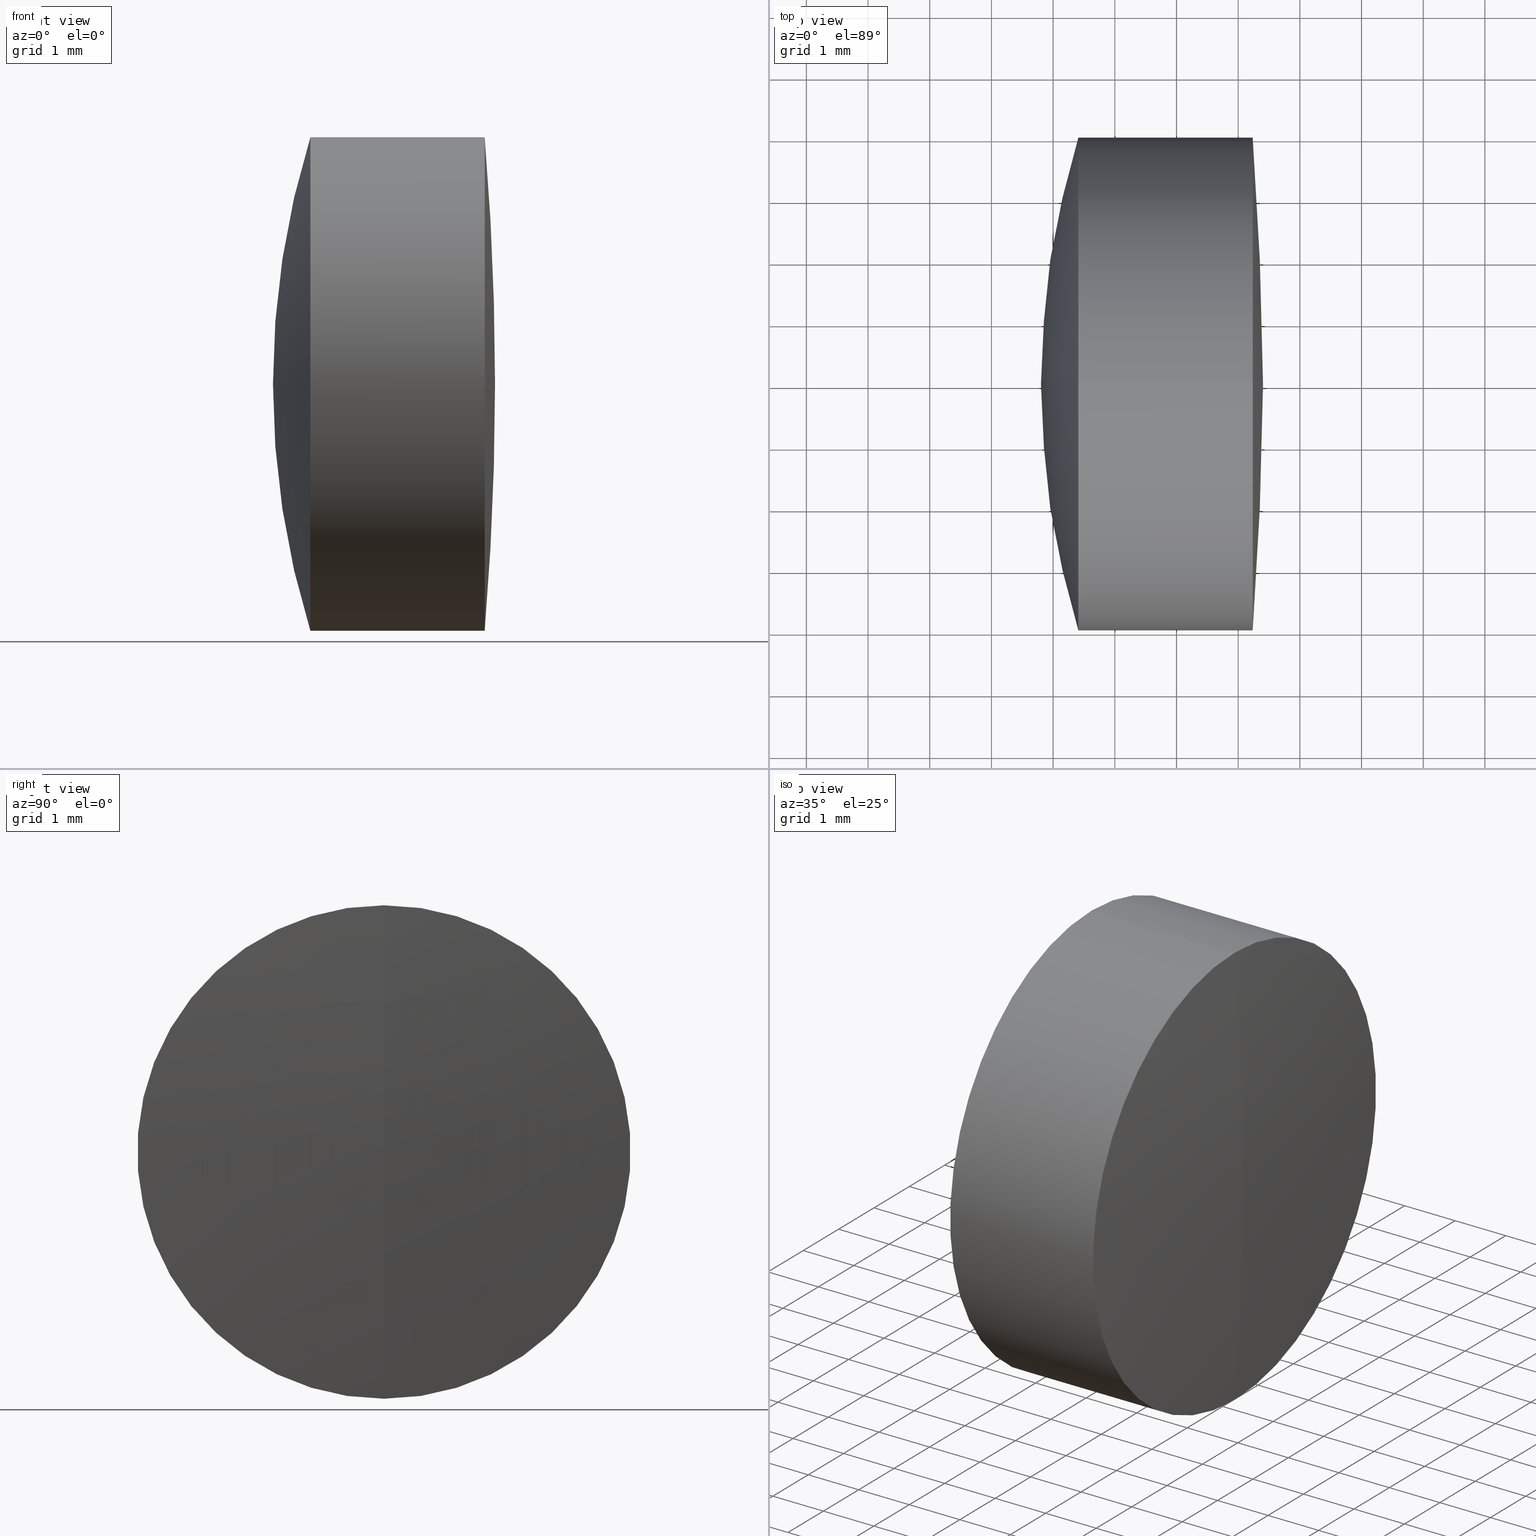
[diagram: canonical four-view strip — front | top / right | iso, engineering-drawing reading convention]
A machine part, canonical four-view strip (front | top / right | iso — engineering-drawing reading convention). The complete STEP part file that produces these views, byte-faithful:
ISO-10303-21;
HEADER;
FILE_DESCRIPTION (( 'STEP AP214' ),
    '1' );
FILE_NAME ('145108.STEP',
    '2019-05-29T07:32:19',
    ( 'user' ),
    ( '΢���й�' ),
    'SwSTEP 2.0',
    'SolidWorks 2016',
    '' );
FILE_SCHEMA (( 'AUTOMOTIVE_DESIGN' ));
ENDSEC;

DATA;
#1 = CIRCLE ( 'NONE', #264, 10.60000000000000500 ) ;
#2 = VERTEX_POINT ( 'NONE', #168 ) ;
#3 = ORIENTED_EDGE ( 'NONE', *, *, #326, .T. ) ;
#4 = COLOUR_RGB ( '',1.000000000000000000, 1.000000000000000000, 1.000000000000000000 ) ;
#5 = FACE_OUTER_BOUND ( 'NONE', #340, .T. ) ;
#6 = ADVANCED_FACE ( 'NONE', ( #277 ), #235, .T. ) ;
#7 = UNCERTAINTY_MEASURE_WITH_UNIT (LENGTH_MEASURE( 1.000000000000000100E-005 ), #117, 'distance_accuracy_value', 'NONE');
#8 = CARTESIAN_POINT ( 'NONE',  ( 221.6030744908272800, 0.0000000000000000000, 0.0000000000000000000 ) ) ;
#9 = AXIS2_PLACEMENT_3D ( 'NONE', #105, #107, #115 ) ;
#10 = ADVANCED_FACE ( 'NONE', ( #23 ), #290, .T. ) ;
#11 = CARTESIAN_POINT ( 'NONE',  ( 267.3193874442736700, 0.0000000000000000000, 3.999999999999998200 ) ) ;
#12 = SPHERICAL_SURFACE ( 'NONE', #116, 10.60000000000000500 ) ;
#13 = EDGE_LOOP ( 'NONE', ( #330, #77, #50 ) ) ;
#14 = ORIENTED_EDGE ( 'NONE', *, *, #19, .T. ) ;
#15 = DIRECTION ( 'NONE',  ( 0.0000000000000000000, -1.224646799147353200E-016, 1.000000000000000000 ) ) ;
#16 = AXIS2_PLACEMENT_3D ( 'NONE', #231, #130, #122 ) ;
#17 = EDGE_LOOP ( 'NONE', ( #296, #125, #220 ) ) ;
#18 = FILL_AREA_STYLE ('',( #245 ) ) ;
#19 = EDGE_CURVE ( 'NONE', #234, #321, #226, .T. ) ;
#20 = DIRECTION ( 'NONE',  ( -1.000000000000000000, -0.0000000000000000000, -0.0000000000000000000 ) ) ;
#21 = SURFACE_STYLE_USAGE ( .BOTH. , #236 ) ;
#22 = DIRECTION ( 'NONE',  ( -1.000000000000000000, -0.0000000000000000000, -0.0000000000000000000 ) ) ;
#23 = FACE_OUTER_BOUND ( 'NONE', #57, .T. ) ;
#24 = CARTESIAN_POINT ( 'NONE',  ( -0.5519199926577972300, 0.0000000000000000000, 3.999999999999998200 ) ) ;
#25 = DIRECTION ( 'NONE',  ( 0.0000000000000000000, 1.000000000000000000, 0.0000000000000000000 ) ) ;
#26 = DIRECTION ( 'NONE',  ( 0.0000000000000000000, 0.0000000000000000000, 1.000000000000000000 ) ) ;
#27 = ORIENTED_EDGE ( 'NONE', *, *, #326, .F. ) ;
#28 = CARTESIAN_POINT ( 'NONE',  ( 257.5030744908272600, 0.0000000000000000000, -2.901324745673849200E-016 ) ) ;
#29 = PRESENTATION_STYLE_ASSIGNMENT (( #206 ) ) ;
#30 = EDGE_LOOP ( 'NONE', ( #250, #161, #302 ) ) ;
#31 = VERTEX_POINT ( 'NONE', #191 ) ;
#32 = CARTESIAN_POINT ( 'NONE',  ( 257.5030744908272600, 0.0000000000000000000, -2.901324745673849200E-016 ) ) ;
#33 = AXIS2_PLACEMENT_3D ( 'NONE', #266, #311, #34 ) ;
#34 = DIRECTION ( 'NONE',  ( 0.0000000000000000000, 0.0000000000000000000, 1.000000000000000000 ) ) ;
#35 = EDGE_CURVE ( 'NONE', #83, #2, #90, .T. ) ;
#36 = CYLINDRICAL_SURFACE ( 'NONE', #33, 3.999999999999998200 ) ;
#37 = ADVANCED_FACE ( 'NONE', ( #75 ), #331, .T. ) ;
#38 = ORIENTED_EDGE ( 'NONE', *, *, #289, .T. ) ;
#39 = DIRECTION ( 'NONE',  ( 0.0000000000000000000, 0.0000000000000000000, -1.000000000000000000 ) ) ;
#40 = ORIENTED_EDGE ( 'NONE', *, *, #254, .T. ) ;
#41 = EDGE_LOOP ( 'NONE', ( #82, #227, #3, #223 ) ) ;
#42 = CARTESIAN_POINT ( 'NONE',  ( 266.4092775325995600, 0.0000000000000000000, 0.0000000000000000000 ) ) ;
#43 = ORIENTED_EDGE ( 'NONE', *, *, #202, .T. ) ;
#44 = VERTEX_POINT ( 'NONE', #93 ) ;
#45 = CIRCLE ( 'NONE', #46, 3.999999999999999100 ) ;
#46 = AXIS2_PLACEMENT_3D ( 'NONE', #71, #20, #327 ) ;
#47 = EDGE_CURVE ( 'NONE', #159, #198, #1, .T. ) ;
#48 = LINE ( 'NONE', #241, #218 ) ;
#49 = ORIENTED_EDGE ( 'NONE', *, *, #140, .T. ) ;
#50 = ORIENTED_EDGE ( 'NONE', *, *, #85, .F. ) ;
#51 = SPHERICAL_SURFACE ( 'NONE', #62, 10.60000000000000500 ) ;
#52 = MECHANICAL_DESIGN_GEOMETRIC_PRESENTATION_REPRESENTATION (  '', ( #347 ), #106 ) ;
#53 = ADVANCED_FACE ( 'NONE', ( #134 ), #12, .F. ) ;
#54 =( NAMED_UNIT ( * ) SI_UNIT ( $, .STERADIAN. ) SOLID_ANGLE_UNIT ( ) );
#55 = ORIENTED_EDGE ( 'NONE', *, *, #85, .T. ) ;
#56 = ORIENTED_EDGE ( 'NONE', *, *, #19, .F. ) ;
#57 = EDGE_LOOP ( 'NONE', ( #300, #96, #219 ) ) ;
#58 = CARTESIAN_POINT ( 'NONE',  ( 257.5030744908272600, 0.0000000000000000000, -2.901324745673849200E-016 ) ) ;
#59 = CIRCLE ( 'NONE', #252, 10.60000000000000500 ) ;
#60 = UNCERTAINTY_MEASURE_WITH_UNIT (LENGTH_MEASURE( 1.000000000000000100E-005 ), #100, 'distance_accuracy_value', 'NONE');
#61 = DIRECTION ( 'NONE',  ( 0.0000000000000000000, 0.0000000000000000000, 1.000000000000000000 ) ) ;
#62 = AXIS2_PLACEMENT_3D ( 'NONE', #177, #346, #317 ) ;
#63 = DIRECTION ( 'NONE',  ( 0.0000000000000000000, 0.0000000000000000000, 1.000000000000000000 ) ) ;
#64 = EDGE_CURVE ( 'NONE', #124, #83, #283, .T. ) ;
#65 = APPLICATION_PROTOCOL_DEFINITION ( 'draft international standard', 'automotive_design', 1998, #80 ) ;
#66 = ADVANCED_FACE ( 'NONE', ( #196 ), #69, .T. ) ;
#67 = DIRECTION ( 'NONE',  ( 0.0000000000000000000, 0.0000000000000000000, 1.000000000000000000 ) ) ;
#68 = CIRCLE ( 'NONE', #230, 3.999999999999998200 ) ;
#69 = CYLINDRICAL_SURFACE ( 'NONE', #344, 3.999999999999998200 ) ;
#70 = ORIENTED_EDGE ( 'NONE', *, *, #47, .F. ) ;
#71 = CARTESIAN_POINT ( 'NONE',  ( 267.3193874442736700, 0.0000000000000000000, 0.0000000000000000000 ) ) ;
#72 = CIRCLE ( 'NONE', #319, 47.79999999999996900 ) ;
#73 = DIRECTION ( 'NONE',  ( -1.000000000000000000, -0.0000000000000000000, -0.0000000000000000000 ) ) ;
#74 = CARTESIAN_POINT ( 'NONE',  ( 279.3030744908272700, 0.0000000000000000000, -1.429446538153924700E-015 ) ) ;
#75 = FACE_OUTER_BOUND ( 'NONE', #17, .T. ) ;
#76 = DIRECTION ( 'NONE',  ( 0.0000000000000000000, 1.000000000000000000, 0.0000000000000000000 ) ) ;
#77 = ORIENTED_EDGE ( 'NONE', *, *, #183, .T. ) ;
#78 = FILL_AREA_STYLE_COLOUR ( '', #213 ) ;
#79 = FACE_OUTER_BOUND ( 'NONE', #173, .T. ) ;
#80 = APPLICATION_CONTEXT ( 'automotive_design' ) ;
#81 = FILL_AREA_STYLE ('',( #78 ) ) ;
#82 = ORIENTED_EDGE ( 'NONE', *, *, #217, .F. ) ;
#83 = VERTEX_POINT ( 'NONE', #324 ) ;
#84 = AXIS2_PLACEMENT_3D ( 'NONE', #172, #186, #225 ) ;
#85 = EDGE_CURVE ( 'NONE', #158, #31, #157, .T. ) ;
#86 = DIRECTION ( 'NONE',  ( -0.0000000000000000000, 1.000000000000000000, 1.224646799147353200E-016 ) ) ;
#87 = ADVANCED_FACE ( 'NONE', ( #208 ), #36, .T. ) ;
#88 = CARTESIAN_POINT ( 'NONE',  ( 266.4092775325995600, 0.0000000000000000000, 3.999999999999999100 ) ) ;
#89 = DIRECTION ( 'NONE',  ( -1.000000000000000000, -0.0000000000000000000, -0.0000000000000000000 ) ) ;
#90 = CIRCLE ( 'NONE', #165, 13.50000000000004800 ) ;
#91 = SURFACE_SIDE_STYLE ('',( #149 ) ) ;
#92 = SURFACE_STYLE_USAGE ( .BOTH. , #91 ) ;
#93 = CARTESIAN_POINT ( 'NONE',  ( 267.3193874442736700, 4.898587196589412800E-016, -4.000000000000000000 ) ) ;
#94 =( NAMED_UNIT ( * ) PLANE_ANGLE_UNIT ( ) SI_UNIT ( $, .RADIAN. ) );
#95 = DIRECTION ( 'NONE',  ( -0.0000000000000000000, 1.000000000000000000, 1.224646799147353200E-016 ) ) ;
#96 = ORIENTED_EDGE ( 'NONE', *, *, #35, .T. ) ;
#97 = CARTESIAN_POINT ( 'NONE',  ( 267.3193874442736700, 0.0000000000000000000, 0.0000000000000000000 ) ) ;
#98 = CARTESIAN_POINT ( 'NONE',  ( -0.5519199926577972300, 0.0000000000000000000, 0.0000000000000000000 ) ) ;
#99 = AXIS2_PLACEMENT_3D ( 'NONE', #113, #112, #201 ) ;
#100 =( LENGTH_UNIT ( ) NAMED_UNIT ( * ) SI_UNIT ( .MILLI., .METRE. ) );
#101 = PRESENTATION_LAYER_ASSIGNMENT (  '', '', ( #347 ) ) ;
#102 =( NAMED_UNIT ( * ) PLANE_ANGLE_UNIT ( ) SI_UNIT ( $, .RADIAN. ) );
#103 = SPHERICAL_SURFACE ( 'NONE', #274, 10.60000000000000500 ) ;
#104 =( NAMED_UNIT ( * ) SI_UNIT ( $, .STERADIAN. ) SOLID_ANGLE_UNIT ( ) );
#105 = CARTESIAN_POINT ( 'NONE',  ( 0.0000000000000000000, 0.0000000000000000000, 0.0000000000000000000 ) ) ;
#106 =( GEOMETRIC_REPRESENTATION_CONTEXT ( 3 ) GLOBAL_UNCERTAINTY_ASSIGNED_CONTEXT ( ( #60 ) ) GLOBAL_UNIT_ASSIGNED_CONTEXT ( ( #100, #102, #104 ) ) REPRESENTATION_CONTEXT ( 'NONE', 'WORKASPACE' ) );
#107 = DIRECTION ( 'NONE',  ( 0.0000000000000000000, 0.0000000000000000000, 1.000000000000000000 ) ) ;
#108 = VECTOR ( 'NONE', #119, 1000.000000000000000 ) ;
#109 = CARTESIAN_POINT ( 'NONE',  ( 257.5030744908272600, 0.0000000000000000000, -2.901324745673849200E-016 ) ) ;
#110 = DIRECTION ( 'NONE',  ( 0.0000000000000000000, 0.0000000000000000000, -1.000000000000000000 ) ) ;
#111 = DIRECTION ( 'NONE',  ( 0.0000000000000000000, 1.000000000000000000, 0.0000000000000000000 ) ) ;
#112 = DIRECTION ( 'NONE',  ( 0.0000000000000000000, 1.000000000000000000, 0.0000000000000000000 ) ) ;
#113 = CARTESIAN_POINT ( 'NONE',  ( 279.3030744908272700, 0.0000000000000000000, -1.429446538153924700E-015 ) ) ;
#114 = CIRCLE ( 'NONE', #16, 3.999999999999999100 ) ;
#115 = DIRECTION ( 'NONE',  ( 1.000000000000000000, 0.0000000000000000000, 0.0000000000000000000 ) ) ;
#116 = AXIS2_PLACEMENT_3D ( 'NONE', #166, #152, #257 ) ;
#117 =( LENGTH_UNIT ( ) NAMED_UNIT ( * ) SI_UNIT ( .MILLI., .METRE. ) );
#118 = EDGE_CURVE ( 'NONE', #158, #198, #269, .T. ) ;
#119 = DIRECTION ( 'NONE',  ( -1.000000000000000000, -0.0000000000000000000, -0.0000000000000000000 ) ) ;
#120 = SPHERICAL_SURFACE ( 'NONE', #200, 47.79999999999996900 ) ;
#121 = CARTESIAN_POINT ( 'NONE',  ( 269.2354164445880500, 0.0000000000000000000, 0.0000000000000000000 ) ) ;
#122 = DIRECTION ( 'NONE',  ( 0.0000000000000000000, 0.0000000000000000000, 1.000000000000000000 ) ) ;
#123 = VECTOR ( 'NONE', #139, 1000.000000000000000 ) ;
#124 = VERTEX_POINT ( 'NONE', #88 ) ;
#125 = ORIENTED_EDGE ( 'NONE', *, *, #150, .T. ) ;
#126 = AXIS2_PLACEMENT_3D ( 'NONE', #97, #261, #233 ) ;
#127 = CIRCLE ( 'NONE', #282, 10.60000000000000500 ) ;
#128 = ADVANCED_BREP_SHAPE_REPRESENTATION ( '145108', ( #160, #336, #9 ), #329 ) ;
#129 = CIRCLE ( 'NONE', #288, 47.79999999999996900 ) ;
#130 = DIRECTION ( 'NONE',  ( -1.000000000000000000, -0.0000000000000000000, -0.0000000000000000000 ) ) ;
#131 = SPHERICAL_SURFACE ( 'NONE', #179, 47.79999999999996900 ) ;
#132 = STYLED_ITEM ( 'NONE', ( #337 ), #336 ) ;
#133 = CARTESIAN_POINT ( 'NONE',  ( 266.4092775325995600, 0.0000000000000000000, 0.0000000000000000000 ) ) ;
#134 = FACE_OUTER_BOUND ( 'NONE', #30, .T. ) ;
#135 = VERTEX_POINT ( 'NONE', #182 ) ;
#136 = PRODUCT_CONTEXT ( 'NONE', #80, 'mechanical' ) ;
#137 = FILL_AREA_STYLE_COLOUR ( '', #4 ) ;
#138 = DIRECTION ( 'NONE',  ( 0.0000000000000000000, 1.000000000000000000, 0.0000000000000000000 ) ) ;
#139 = DIRECTION ( 'NONE',  ( -1.000000000000000000, -0.0000000000000000000, -0.0000000000000000000 ) ) ;
#140 = EDGE_CURVE ( 'NONE', #135, #158, #129, .T. ) ;
#141 = ADVANCED_FACE ( 'NONE', ( #5 ), #188, .T. ) ;
#142 =( NAMED_UNIT ( * ) SI_UNIT ( $, .STERADIAN. ) SOLID_ANGLE_UNIT ( ) );
#143 = CLOSED_SHELL ( 'NONE', ( #268, #87, #171, #53, #6, #299 ) ) ;
#144 = DIRECTION ( 'NONE',  ( 0.0000000000000000000, -1.000000000000000000, 0.0000000000000000000 ) ) ;
#145 = ORIENTED_EDGE ( 'NONE', *, *, #202, .F. ) ;
#146 = PRODUCT ( '145108', '145108', '', ( #136 ) ) ;
#147 = AXIS2_PLACEMENT_3D ( 'NONE', #74, #320, #39 ) ;
#148 = CARTESIAN_POINT ( 'NONE',  ( 279.3030744908272700, 0.0000000000000000000, -1.429446538153924700E-015 ) ) ;
#149 = SURFACE_STYLE_FILL_AREA ( #81 ) ;
#150 = EDGE_CURVE ( 'NONE', #83, #124, #239, .T. ) ;
#151 = DIRECTION ( 'NONE',  ( 0.0000000000000000000, 0.0000000000000000000, 1.000000000000000000 ) ) ;
#152 = DIRECTION ( 'NONE',  ( 0.0000000000000000000, 1.000000000000000000, 0.0000000000000000000 ) ) ;
#153 = DIRECTION ( 'NONE',  ( -1.000000000000000000, -0.0000000000000000000, -0.0000000000000000000 ) ) ;
#154 = APPLICATION_CONTEXT ( 'automotive_design' ) ;
#155 = MECHANICAL_DESIGN_GEOMETRIC_PRESENTATION_REPRESENTATION (  '', ( #132 ), #316 ) ;
#156 = DIRECTION ( 'NONE',  ( -1.000000000000000000, -0.0000000000000000000, -0.0000000000000000000 ) ) ;
#157 = CIRCLE ( 'NONE', #164, 3.999999999999998200 ) ;
#158 = VERTEX_POINT ( 'NONE', #240 ) ;
#159 = VERTEX_POINT ( 'NONE', #180 ) ;
#160 = MANIFOLD_SOLID_BREP ( '��ת1', #339 ) ;
#161 = ORIENTED_EDGE ( 'NONE', *, *, #47, .T. ) ;
#162 = ORIENTED_EDGE ( 'NONE', *, *, #254, .F. ) ;
#163 = DIRECTION ( 'NONE',  ( 0.0000000000000000000, 0.0000000000000000000, 1.000000000000000000 ) ) ;
#164 = AXIS2_PLACEMENT_3D ( 'NONE', #255, #153, #26 ) ;
#165 = AXIS2_PLACEMENT_3D ( 'NONE', #148, #332, #176 ) ;
#166 = CARTESIAN_POINT ( 'NONE',  ( 257.5030744908272600, 0.0000000000000000000, -2.901324745673849200E-016 ) ) ;
#167 = STYLED_ITEM ( 'NONE', ( #29 ), #160 ) ;
#168 = CARTESIAN_POINT ( 'NONE',  ( 265.8030744908271600, 0.0000000000000000000, -6.028099487294583000E-016 ) ) ;
#169 = AXIS2_PLACEMENT_3D ( 'NONE', #253, #138, #338 ) ;
#170 = ORIENTED_EDGE ( 'NONE', *, *, #305, .T. ) ;
#171 = ADVANCED_FACE ( 'NONE', ( #79 ), #103, .F. ) ;
#172 = CARTESIAN_POINT ( 'NONE',  ( 267.3193874442736700, 0.0000000000000000000, 0.0000000000000000000 ) ) ;
#173 = EDGE_LOOP ( 'NONE', ( #70, #309, #175 ) ) ;
#174 = CARTESIAN_POINT ( 'NONE',  ( 221.6030744908272800, 0.0000000000000000000, 0.0000000000000000000 ) ) ;
#175 = ORIENTED_EDGE ( 'NONE', *, *, #181, .T. ) ;
#176 = DIRECTION ( 'NONE',  ( 0.0000000000000000000, -1.224646799147353200E-016, 1.000000000000000000 ) ) ;
#177 = CARTESIAN_POINT ( 'NONE',  ( 257.5030744908272600, 0.0000000000000000000, -2.901324745673849200E-016 ) ) ;
#178 = APPLICATION_PROTOCOL_DEFINITION ( 'draft international standard', 'automotive_design', 1998, #154 ) ;
#179 = AXIS2_PLACEMENT_3D ( 'NONE', #8, #111, #61 ) ;
#180 = CARTESIAN_POINT ( 'NONE',  ( 268.1030744908272800, 0.0000000000000000000, 3.589303289807125600E-016 ) ) ;
#181 = EDGE_CURVE ( 'NONE', #44, #198, #114, .T. ) ;
#182 = CARTESIAN_POINT ( 'NONE',  ( 269.4030744908272400, 0.0000000000000000000, 2.926905849962172200E-015 ) ) ;
#183 = EDGE_CURVE ( 'NONE', #135, #31, #72, .T. ) ;
#184 = CARTESIAN_POINT ( 'NONE',  ( 221.6030744908272800, 0.0000000000000000000, 0.0000000000000000000 ) ) ;
#185 = COLOUR_RGB ( '',1.000000000000000000, 1.000000000000000000, 1.000000000000000000 ) ;
#186 = DIRECTION ( 'NONE',  ( -1.000000000000000000, -0.0000000000000000000, -0.0000000000000000000 ) ) ;
#187 = ADVANCED_FACE ( 'NONE', ( #342 ), #51, .T. ) ;
#188 = CYLINDRICAL_SURFACE ( 'NONE', #221, 3.999999999999998200 ) ;
#189 = EDGE_LOOP ( 'NONE', ( #259, #170, #238, #314 ) ) ;
#190 = UNCERTAINTY_MEASURE_WITH_UNIT (LENGTH_MEASURE( 1.000000000000000100E-005 ), #249, 'distance_accuracy_value', 'NONE');
#191 = CARTESIAN_POINT ( 'NONE',  ( 269.2354164445880500, 4.898587196589410900E-016, -3.999999999999998200 ) ) ;
#192 = ADVANCED_FACE ( 'NONE', ( #278 ), #262, .T. ) ;
#193 = DIRECTION ( 'NONE',  ( 0.0000000000000000000, -1.224646799147353200E-016, 1.000000000000000000 ) ) ;
#194 = AXIS2_PLACEMENT_3D ( 'NONE', #58, #251, #15 ) ;
#195 = DIRECTION ( 'NONE',  ( 0.0000000000000000000, 0.0000000000000000000, -1.000000000000000000 ) ) ;
#196 = FACE_OUTER_BOUND ( 'NONE', #41, .T. ) ;
#197 = FILL_AREA_STYLE ('',( #137 ) ) ;
#198 = VERTEX_POINT ( 'NONE', #267 ) ;
#199 = CIRCLE ( 'NONE', #147, 13.50000000000004800 ) ;
#200 = AXIS2_PLACEMENT_3D ( 'NONE', #184, #76, #272 ) ;
#201 = DIRECTION ( 'NONE',  ( 0.0000000000000000000, 0.0000000000000000000, 1.000000000000000000 ) ) ;
#202 = EDGE_CURVE ( 'NONE', #243, #321, #212, .T. ) ;
#203 = PRESENTATION_STYLE_ASSIGNMENT (( #92 ) ) ;
#204 = DIRECTION ( 'NONE',  ( -1.000000000000000000, -0.0000000000000000000, -0.0000000000000000000 ) ) ;
#205 = DIRECTION ( 'NONE',  ( 0.0000000000000000000, 0.0000000000000000000, 1.000000000000000000 ) ) ;
#206 = SURFACE_STYLE_USAGE ( .BOTH. , #281 ) ;
#207 = PRESENTATION_LAYER_ASSIGNMENT (  '', '', ( #132 ) ) ;
#208 = FACE_OUTER_BOUND ( 'NONE', #315, .T. ) ;
#209 = ORIENTED_EDGE ( 'NONE', *, *, #275, .F. ) ;
#210 = EDGE_LOOP ( 'NONE', ( #228, #49, #295 ) ) ;
#211 = CARTESIAN_POINT ( 'NONE',  ( 267.3193874442736700, 4.898587196589410900E-016, -3.999999999999998200 ) ) ;
#212 = CIRCLE ( 'NONE', #126, 3.999999999999998200 ) ;
#213 = COLOUR_RGB ( '',1.000000000000000000, 1.000000000000000000, 1.000000000000000000 ) ;
#214 = CARTESIAN_POINT ( 'NONE',  ( 268.1030744908272800, 0.0000000000000000000, 3.589303289807125600E-016 ) ) ;
#215 = PRODUCT_DEFINITION_SHAPE ( 'NONE', 'NONE',  #224 ) ;
#216 = AXIS2_PLACEMENT_3D ( 'NONE', #42, #22, #205 ) ;
#217 = EDGE_CURVE ( 'NONE', #321, #83, #325, .T. ) ;
#218 = VECTOR ( 'NONE', #287, 1000.000000000000000 ) ;
#219 = ORIENTED_EDGE ( 'NONE', *, *, #232, .F. ) ;
#220 = ORIENTED_EDGE ( 'NONE', *, *, #232, .T. ) ;
#221 = AXIS2_PLACEMENT_3D ( 'NONE', #260, #156, #163 ) ;
#222 = EDGE_CURVE ( 'NONE', #321, #243, #333, .T. ) ;
#223 = ORIENTED_EDGE ( 'NONE', *, *, #150, .F. ) ;
#224 = PRODUCT_DEFINITION ( 'δ֪', '', #334, #247 ) ;
#225 = DIRECTION ( 'NONE',  ( 0.0000000000000000000, 0.0000000000000000000, 1.000000000000000000 ) ) ;
#226 = CIRCLE ( 'NONE', #194, 10.60000000000000500 ) ;
#227 = ORIENTED_EDGE ( 'NONE', *, *, #222, .T. ) ;
#228 = ORIENTED_EDGE ( 'NONE', *, *, #183, .F. ) ;
#229 = DIRECTION ( 'NONE',  ( 0.0000000000000000000, 0.0000000000000000000, 1.000000000000000000 ) ) ;
#230 = AXIS2_PLACEMENT_3D ( 'NONE', #121, #89, #279 ) ;
#231 = CARTESIAN_POINT ( 'NONE',  ( 267.3193874442736700, 0.0000000000000000000, 0.0000000000000000000 ) ) ;
#232 = EDGE_CURVE ( 'NONE', #124, #2, #199, .T. ) ;
#233 = DIRECTION ( 'NONE',  ( 0.0000000000000000000, 0.0000000000000000000, 1.000000000000000000 ) ) ;
#234 = VERTEX_POINT ( 'NONE', #214 ) ;
#235 = CYLINDRICAL_SURFACE ( 'NONE', #345, 3.999999999999998200 ) ;
#236 = SURFACE_SIDE_STYLE ('',( #343 ) ) ;
#237 = AXIS2_PLACEMENT_3D ( 'NONE', #133, #204, #229 ) ;
#238 = ORIENTED_EDGE ( 'NONE', *, *, #118, .T. ) ;
#239 = CIRCLE ( 'NONE', #216, 3.999999999999999100 ) ;
#240 = CARTESIAN_POINT ( 'NONE',  ( 269.2354164445880500, 0.0000000000000000000, 3.999999999999998200 ) ) ;
#241 = CARTESIAN_POINT ( 'NONE',  ( 124.5233095260452400, 0.0000000000000000000, 3.999999999999998200 ) ) ;
#242 = CARTESIAN_POINT ( 'NONE',  ( 257.5030744908272600, 0.0000000000000000000, -2.901324745673849200E-016 ) ) ;
#243 = VERTEX_POINT ( 'NONE', #11 ) ;
#244 = AXIS2_PLACEMENT_3D ( 'NONE', #242, #25, #280 ) ;
#245 = FILL_AREA_STYLE_COLOUR ( '', #185 ) ;
#246 = EDGE_CURVE ( 'NONE', #159, #44, #127, .T. ) ;
#247 = PRODUCT_DEFINITION_CONTEXT ( 'detailed design', #154, 'design' ) ;
#248 = DIRECTION ( 'NONE',  ( 0.0000000000000000000, -1.000000000000000000, 0.0000000000000000000 ) ) ;
#249 =( LENGTH_UNIT ( ) NAMED_UNIT ( * ) SI_UNIT ( .MILLI., .METRE. ) );
#250 = ORIENTED_EDGE ( 'NONE', *, *, #246, .F. ) ;
#251 = DIRECTION ( 'NONE',  ( -0.0000000000000000000, 1.000000000000000000, 1.224646799147353200E-016 ) ) ;
#252 = AXIS2_PLACEMENT_3D ( 'NONE', #284, #248, #110 ) ;
#253 = CARTESIAN_POINT ( 'NONE',  ( 279.3030744908272700, 0.0000000000000000000, -1.429446538153924700E-015 ) ) ;
#254 = EDGE_CURVE ( 'NONE', #234, #243, #59, .T. ) ;
#255 = CARTESIAN_POINT ( 'NONE',  ( 269.2354164445880500, 0.0000000000000000000, 0.0000000000000000000 ) ) ;
#256 = CARTESIAN_POINT ( 'NONE',  ( -0.5519199926577972300, 4.898587196589410900E-016, -3.999999999999998200 ) ) ;
#257 = DIRECTION ( 'NONE',  ( 0.0000000000000000000, 0.0000000000000000000, 1.000000000000000000 ) ) ;
#258 = CARTESIAN_POINT ( 'NONE',  ( 221.6030744908272800, 0.0000000000000000000, 0.0000000000000000000 ) ) ;
#259 = ORIENTED_EDGE ( 'NONE', *, *, #289, .F. ) ;
#260 = CARTESIAN_POINT ( 'NONE',  ( 124.5233095260452400, 0.0000000000000000000, 0.0000000000000000000 ) ) ;
#261 = DIRECTION ( 'NONE',  ( -1.000000000000000000, -0.0000000000000000000, -0.0000000000000000000 ) ) ;
#262 = SPHERICAL_SURFACE ( 'NONE', #244, 10.60000000000000500 ) ;
#263 = DIRECTION ( 'NONE',  ( 0.0000000000000000000, -1.000000000000000000, 0.0000000000000000000 ) ) ;
#264 = AXIS2_PLACEMENT_3D ( 'NONE', #32, #144, #195 ) ;
#265 = FACE_OUTER_BOUND ( 'NONE', #210, .T. ) ;
#266 = CARTESIAN_POINT ( 'NONE',  ( -0.5519199926577972300, 0.0000000000000000000, 0.0000000000000000000 ) ) ;
#267 = CARTESIAN_POINT ( 'NONE',  ( 267.3193874442736700, 0.0000000000000000000, 4.000000000000000000 ) ) ;
#268 = ADVANCED_FACE ( 'NONE', ( #273 ), #131, .T. ) ;
#269 = LINE ( 'NONE', #24, #123 ) ;
#270 =( NAMED_UNIT ( * ) SI_UNIT ( $, .STERADIAN. ) SOLID_ANGLE_UNIT ( ) );
#271 = ORIENTED_EDGE ( 'NONE', *, *, #217, .T. ) ;
#272 = DIRECTION ( 'NONE',  ( 0.0000000000000000000, 0.0000000000000000000, 1.000000000000000000 ) ) ;
#273 = FACE_OUTER_BOUND ( 'NONE', #13, .T. ) ;
#274 = AXIS2_PLACEMENT_3D ( 'NONE', #28, #306, #67 ) ;
#275 = EDGE_CURVE ( 'NONE', #198, #44, #45, .T. ) ;
#276 = PRODUCT_RELATED_PRODUCT_CATEGORY ( 'part', '', ( #146 ) ) ;
#277 = FACE_OUTER_BOUND ( 'NONE', #189, .T. ) ;
#278 = FACE_OUTER_BOUND ( 'NONE', #341, .T. ) ;
#279 = DIRECTION ( 'NONE',  ( 0.0000000000000000000, 0.0000000000000000000, 1.000000000000000000 ) ) ;
#280 = DIRECTION ( 'NONE',  ( 0.0000000000000000000, 0.0000000000000000000, 1.000000000000000000 ) ) ;
#281 = SURFACE_SIDE_STYLE ('',( #307 ) ) ;
#282 = AXIS2_PLACEMENT_3D ( 'NONE', #109, #86, #193 ) ;
#283 = CIRCLE ( 'NONE', #237, 3.999999999999999100 ) ;
#284 = CARTESIAN_POINT ( 'NONE',  ( 257.5030744908272600, 0.0000000000000000000, -2.901324745673849200E-016 ) ) ;
#285 = ORIENTED_EDGE ( 'NONE', *, *, #64, .F. ) ;
#286 = VECTOR ( 'NONE', #73, 1000.000000000000000 ) ;
#287 = DIRECTION ( 'NONE',  ( -1.000000000000000000, -0.0000000000000000000, -0.0000000000000000000 ) ) ;
#288 = AXIS2_PLACEMENT_3D ( 'NONE', #258, #263, #304 ) ;
#289 = EDGE_CURVE ( 'NONE', #31, #44, #328, .T. ) ;
#290 = SPHERICAL_SURFACE ( 'NONE', #169, 13.50000000000004800 ) ;
#291 = EDGE_LOOP ( 'NONE', ( #162, #14, #145 ) ) ;
#292 = ORIENTED_EDGE ( 'NONE', *, *, #118, .F. ) ;
#293 = DIRECTION ( 'NONE',  ( -1.000000000000000000, -0.0000000000000000000, -0.0000000000000000000 ) ) ;
#294 = CARTESIAN_POINT ( 'NONE',  ( 124.5233095260452400, 0.0000000000000000000, 0.0000000000000000000 ) ) ;
#295 = ORIENTED_EDGE ( 'NONE', *, *, #305, .F. ) ;
#296 = ORIENTED_EDGE ( 'NONE', *, *, #35, .F. ) ;
#297 =( NAMED_UNIT ( * ) PLANE_ANGLE_UNIT ( ) SI_UNIT ( $, .RADIAN. ) );
#298 =( GEOMETRIC_REPRESENTATION_CONTEXT ( 3 ) GLOBAL_UNCERTAINTY_ASSIGNED_CONTEXT ( ( #190 ) ) GLOBAL_UNIT_ASSIGNED_CONTEXT ( ( #249, #308, #142 ) ) REPRESENTATION_CONTEXT ( 'NONE', 'WORKASPACE' ) );
#299 = ADVANCED_FACE ( 'NONE', ( #265 ), #120, .T. ) ;
#300 = ORIENTED_EDGE ( 'NONE', *, *, #64, .T. ) ;
#301 = DIRECTION ( 'NONE',  ( -1.000000000000000000, -0.0000000000000000000, -0.0000000000000000000 ) ) ;
#302 = ORIENTED_EDGE ( 'NONE', *, *, #275, .T. ) ;
#303 = MECHANICAL_DESIGN_GEOMETRIC_PRESENTATION_REPRESENTATION (  '', ( #167 ), #298 ) ;
#304 = DIRECTION ( 'NONE',  ( 0.0000000000000000000, 0.0000000000000000000, -1.000000000000000000 ) ) ;
#305 = EDGE_CURVE ( 'NONE', #31, #158, #68, .T. ) ;
#306 = DIRECTION ( 'NONE',  ( 0.0000000000000000000, 1.000000000000000000, 0.0000000000000000000 ) ) ;
#307 = SURFACE_STYLE_FILL_AREA ( #18 ) ;
#308 =( NAMED_UNIT ( * ) PLANE_ANGLE_UNIT ( ) SI_UNIT ( $, .RADIAN. ) );
#309 = ORIENTED_EDGE ( 'NONE', *, *, #246, .T. ) ;
#310 =( LENGTH_UNIT ( ) NAMED_UNIT ( * ) SI_UNIT ( .MILLI., .METRE. ) );
#311 = DIRECTION ( 'NONE',  ( -1.000000000000000000, -0.0000000000000000000, -0.0000000000000000000 ) ) ;
#312 = DIRECTION ( 'NONE',  ( 0.0000000000000000000, -1.224646799147353200E-016, 1.000000000000000000 ) ) ;
#313 = UNCERTAINTY_MEASURE_WITH_UNIT (LENGTH_MEASURE( 1.000000000000000100E-005 ), #310, 'distance_accuracy_value', 'NONE');
#314 = ORIENTED_EDGE ( 'NONE', *, *, #181, .F. ) ;
#315 = EDGE_LOOP ( 'NONE', ( #55, #38, #209, #292 ) ) ;
#316 =( GEOMETRIC_REPRESENTATION_CONTEXT ( 3 ) GLOBAL_UNCERTAINTY_ASSIGNED_CONTEXT ( ( #313 ) ) GLOBAL_UNIT_ASSIGNED_CONTEXT ( ( #310, #94, #270 ) ) REPRESENTATION_CONTEXT ( 'NONE', 'WORKASPACE' ) );
#317 = DIRECTION ( 'NONE',  ( 0.0000000000000000000, 0.0000000000000000000, 1.000000000000000000 ) ) ;
#318 = SHAPE_DEFINITION_REPRESENTATION ( #215, #128 ) ;
#319 = AXIS2_PLACEMENT_3D ( 'NONE', #174, #95, #312 ) ;
#320 = DIRECTION ( 'NONE',  ( 0.0000000000000000000, -1.000000000000000000, 0.0000000000000000000 ) ) ;
#321 = VERTEX_POINT ( 'NONE', #211 ) ;
#322 = ORIENTED_EDGE ( 'NONE', *, *, #222, .F. ) ;
#323 = PRESENTATION_LAYER_ASSIGNMENT (  '', '', ( #167 ) ) ;
#324 = CARTESIAN_POINT ( 'NONE',  ( 266.4092775325995600, 4.898587196589411800E-016, -4.000000000000000900 ) ) ;
#325 = LINE ( 'NONE', #335, #286 ) ;
#326 = EDGE_CURVE ( 'NONE', #243, #124, #48, .T. ) ;
#327 = DIRECTION ( 'NONE',  ( 0.0000000000000000000, 0.0000000000000000000, 1.000000000000000000 ) ) ;
#328 = LINE ( 'NONE', #256, #108 ) ;
#329 =( GEOMETRIC_REPRESENTATION_CONTEXT ( 3 ) GLOBAL_UNCERTAINTY_ASSIGNED_CONTEXT ( ( #7 ) ) GLOBAL_UNIT_ASSIGNED_CONTEXT ( ( #117, #297, #54 ) ) REPRESENTATION_CONTEXT ( 'NONE', 'WORKASPACE' ) );
#330 = ORIENTED_EDGE ( 'NONE', *, *, #140, .F. ) ;
#331 = SPHERICAL_SURFACE ( 'NONE', #99, 13.50000000000004800 ) ;
#332 = DIRECTION ( 'NONE',  ( -0.0000000000000000000, 1.000000000000000000, 1.224646799147353200E-016 ) ) ;
#333 = CIRCLE ( 'NONE', #84, 3.999999999999998200 ) ;
#334 = PRODUCT_DEFINITION_FORMATION_WITH_SPECIFIED_SOURCE ( '�κ�', '', #146, .NOT_KNOWN. ) ;
#335 = CARTESIAN_POINT ( 'NONE',  ( 124.5233095260452400, 4.898587196589410900E-016, -3.999999999999998200 ) ) ;
#336 = MANIFOLD_SOLID_BREP ( '��ת3', #143 ) ;
#337 = PRESENTATION_STYLE_ASSIGNMENT (( #21 ) ) ;
#338 = DIRECTION ( 'NONE',  ( 0.0000000000000000000, 0.0000000000000000000, 1.000000000000000000 ) ) ;
#339 = CLOSED_SHELL ( 'NONE', ( #187, #141, #10, #37, #66, #192 ) ) ;
#340 = EDGE_LOOP ( 'NONE', ( #43, #271, #285, #27 ) ) ;
#341 = EDGE_LOOP ( 'NONE', ( #56, #40, #322 ) ) ;
#342 = FACE_OUTER_BOUND ( 'NONE', #291, .T. ) ;
#343 = SURFACE_STYLE_FILL_AREA ( #197 ) ;
#344 = AXIS2_PLACEMENT_3D ( 'NONE', #294, #293, #63 ) ;
#345 = AXIS2_PLACEMENT_3D ( 'NONE', #98, #301, #151 ) ;
#346 = DIRECTION ( 'NONE',  ( 0.0000000000000000000, 1.000000000000000000, 0.0000000000000000000 ) ) ;
#347 = STYLED_ITEM ( 'NONE', ( #203 ), #128 ) ;
ENDSEC;
END-ISO-10303-21;
